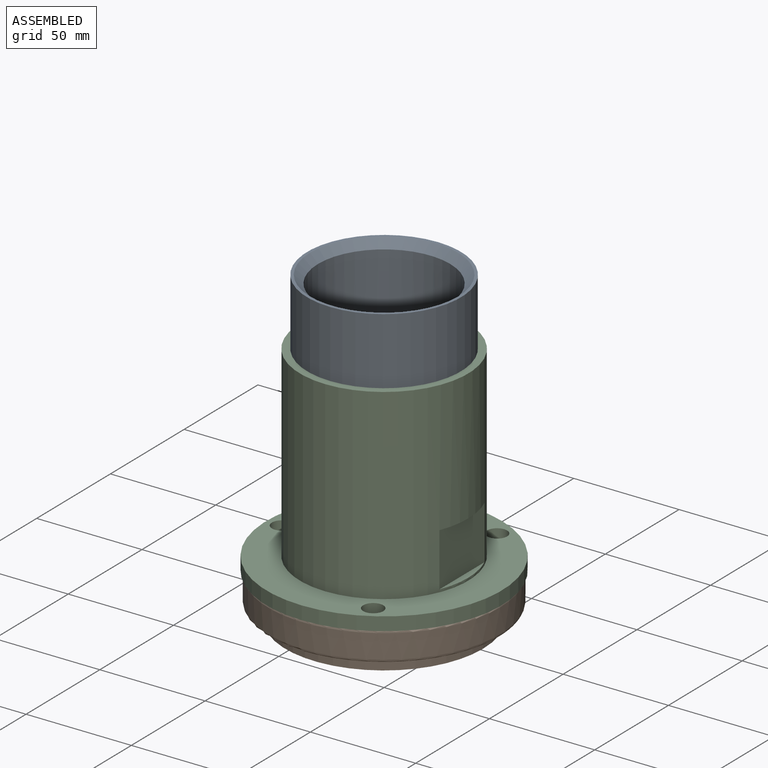
[diagram: assembled view]
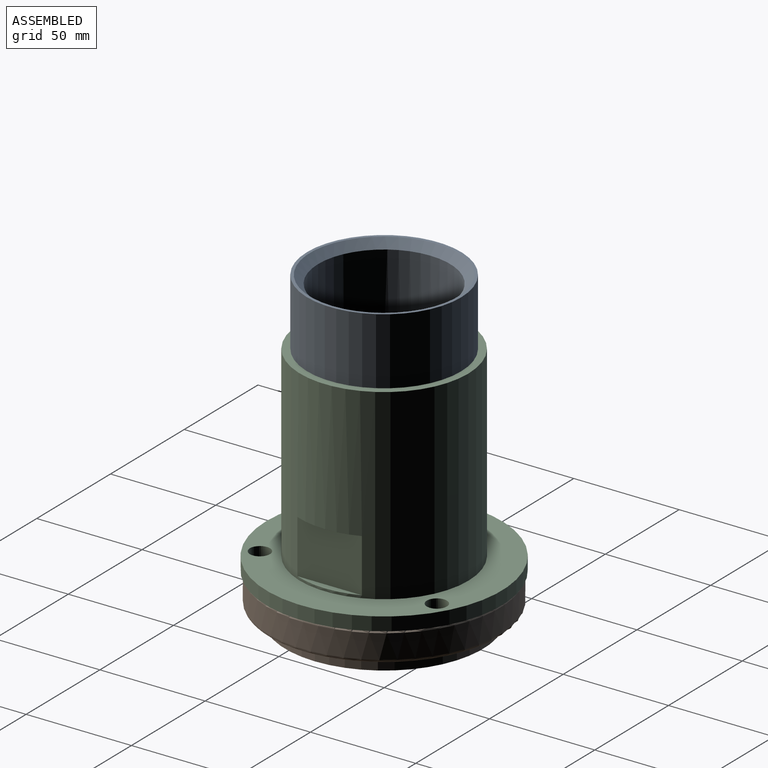
[diagram: assembled view, second angle]
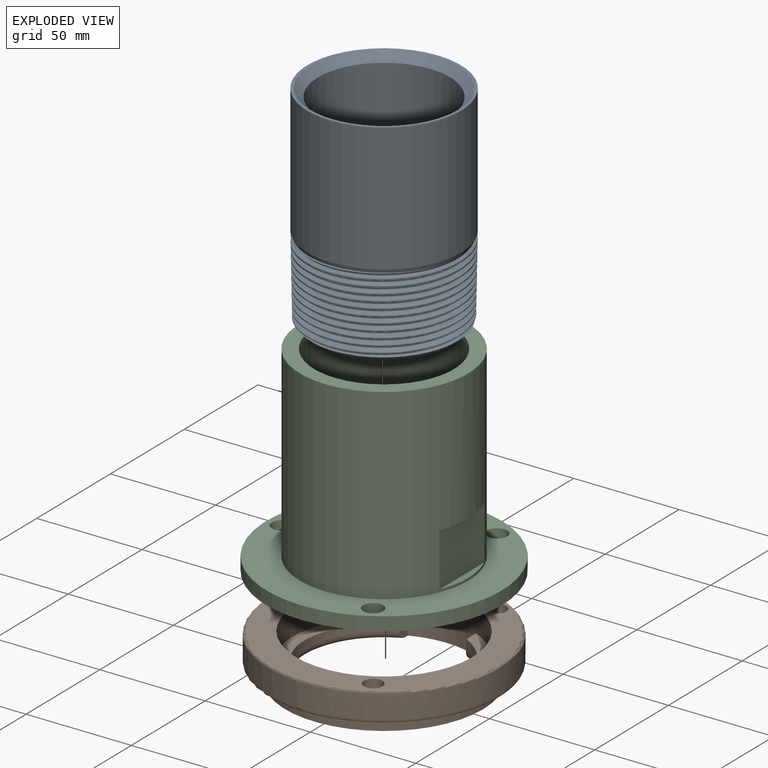
[diagram: exploded view]
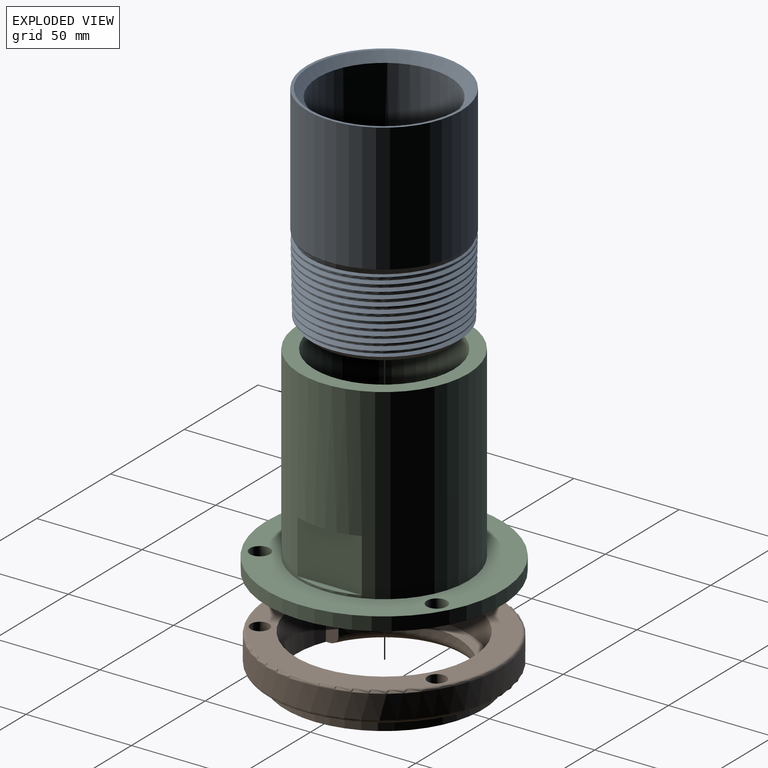
[diagram: exploded view, second angle]
ASSEMBLY  parts=3 mates=2
PART A: 14 faces, bbox 101.8x74.2x74.1 mm
  f0: bspline ~69.87x69.87mm, area 962.6mm2, adj f1,f2,f5,f8
  f1: bspline ~74.2x74.06mm, area 5275.2mm2, adj f0,f3,f4,f5,f6,f8,f9
  f2: bspline ~74.12x74.06mm, area 5463.6mm2, adj f0,f3,f4,f6,f8,f9
  f3: cone r=34.69mm half-angle=45deg, axis (1,0,0), area 104.8mm2, adj f1,f2,f4,f9
  f4: cone r=36.51mm half-angle=1deg, axis (-1,0,0), area 1380.9mm2, adj f1,f2,f3,f6
  f5: cone r=32.58mm half-angle=46deg, axis (-1,0,0), area 598.5mm2, adj f0,f1,f6,f7
  f6: cone r=32.58mm half-angle=46deg, axis (-1,0,0), area 77mm2, adj f1,f2,f4,f5
  f7: plane 65.17x65.17mm, normal (1,0,0), area 246.6mm2, adj f5,f12
  f8: cone r=36.51mm half-angle=25deg, axis (-1,0,0), area 26.2mm2, adj f0,f1,f2,f9
  f9: cone r=36.51mm half-angle=25deg, axis (-1,0,0), area 558.1mm2, adj f1,f2,f3,f8,f10
  f10: cylinder r=36.51mm len=73.03mm, axis (1,0,0), area 13970.8mm2, adj f9,f11
  f11: plane 73.03x73.03mm, normal (-1,0,0), area 303.1mm2, adj f10,f13
  f12: cylinder r=31.36mm len=97.79mm, axis (1,0,0), area 19266.3mm2, adj f7,f13
  f13: cone r=35.17mm half-angle=45deg, axis (-1,0,0), area 1126.1mm2, adj f11,f12
PART B: 39 faces, bbox 119.4x21.3x119.4 mm
  f0: cylinder r=36.4mm len=65.37mm, axis (0,1,0), area 335.7mm2, adj f21,f22,f23,f24,f25,f38
  f1: plane 8.98x6.19mm, normal (-1,0,0), area 47.1mm2, adj f5,f12,f17,f21,f38
  f2: plane 6.19x5.84mm, normal (-1,0,0), area 28.6mm2, adj f5,f12,f18,f25,f38
  f3: cylinder r=36.4mm len=65.37mm, axis (0,1,0), area 335.7mm2, adj f26,f27,f28,f29,f30,f37
  f4: cylinder r=55mm len=110mm, axis (0,1,0), area 3960.3mm2, adj f10,f11
  f5: plane 94x94mm, normal (0,1,0), area 1749.5mm2, adj f1,f2,f8,f12,f13,f14,f37,f38
  f6: plane 107.46x107.46mm, normal (0,-1,0), area 3369mm2, adj f11,f12,f31,f33,f35
  f7: plane 107.46x107.46mm, normal (0,1,0), area 1749.5mm2, adj f9,f10,f32,f34,f36
  f8: cylinder r=47mm len=94mm, axis (0,-1,0), area 1692.1mm2, adj f5,f9
  f9: torus R=48.27mm, axis (0,-1,0), area 594.9mm2, adj f7,f8
  f10: torus R=53.73mm, axis (0,1,0), area 683.6mm2, adj f4,f7
  f11: torus R=53.73mm, axis (0,-1,0), area 683.6mm2, adj f4,f6
  f12: cylinder r=41.91mm len=83.82mm, axis (0,-1,0), area 3903.4mm2, adj f1,f2,f5,f6,f13,f14,f15,f16
  f13: plane 6.19x5.84mm, normal (1,0,0), area 28.6mm2, adj f5,f12,f19,f26,f37
  f14: plane 8.98x6.19mm, normal (1,0,0), area 47.1mm2, adj f5,f12,f20,f30,f37
  f15: plane 76.81x25.09mm, normal (0,-1,0.04), area 462mm2, adj f12,f19,f20,f28
  f16: plane 76.81x25.09mm, normal (0,-1,-0.04), area 462mm2, adj f12,f17,f18,f23
  f17: cylinder r=1.27mm len=6.39mm, axis (0,-0.04,1), area 11.7mm2, adj f1,f12,f16,f22
  f18: cylinder r=1.27mm len=6.48mm, axis (0,-0.04,1), area 11.7mm2, adj f2,f12,f16,f24
  f19: cylinder r=1.27mm len=6.48mm, axis (0,-0.04,-1), area 11.7mm2, adj f12,f13,f15,f27
  f20: cylinder r=1.27mm len=6.39mm, axis (0,-0.04,-1), area 11.7mm2, adj f12,f14,f15,f29
  f21: plane 5.75x0.35mm, normal (-0.85,0,-0.53), area 1.5mm2, adj f0,f1,f22,f38
  f22: bspline ~1.28x1.28mm, area 0.6mm2, adj f0,f17,f21,f23
  f23: bspline ~64.82x19.64mm, area 29.4mm2, adj f0,f16,f22,f24
  f24: bspline ~1.3x1.28mm, area 0.6mm2, adj f0,f18,f23,f25
  f25: plane 2.87x0.35mm, normal (-0.85,0,0.53), area 0.7mm2, adj f0,f2,f24,f38
  f26: plane 2.87x0.35mm, normal (0.85,0,-0.53), area 0.7mm2, adj f3,f13,f27,f37
  f27: bspline ~1.3x1.28mm, area 0.6mm2, adj f3,f19,f26,f28
  f28: bspline ~64.82x19.64mm, area 29.4mm2, adj f3,f15,f27,f29
  f29: bspline ~1.28x1.28mm, area 0.6mm2, adj f3,f20,f28,f30
  f30: plane 5.75x0.35mm, normal (0.85,0,0.53), area 1.5mm2, adj f3,f14,f29,f37
  f31: cylinder r=4.4mm len=11.43mm, axis (0,-1,0), area 316mm2, adj f6,f32
  f32: cone r=0mm half-angle=59deg, axis (0,-1,0), area 70.9mm2, adj f7,f31
  f33: cylinder r=4.4mm len=11.43mm, axis (0,-1,0), area 316mm2, adj f6,f34
  f34: cone r=0mm half-angle=59deg, axis (0,-1,0), area 70.9mm2, adj f7,f33
  f35: cylinder r=4.4mm len=11.43mm, axis (0,-1,0), area 316mm2, adj f6,f36
  f36: cone r=0mm half-angle=59deg, axis (0,-1,0), area 70.9mm2, adj f7,f35
  f37: torus R=40.21mm, axis (0,-1,0), area 515.2mm2, adj f3,f5,f13,f14,f26,f30
  f38: torus R=40.21mm, axis (0,-1,0), area 515.2mm2, adj f0,f1,f2,f5,f21,f25
PART C: 20 faces, bbox 111.8x101.3x111.8 mm
  f0: cylinder r=4.76mm len=9.53mm, axis (0,1,0), area 190mm2, adj f4,f5
  f1: cylinder r=4.76mm len=9.53mm, axis (0,1,0), area 190mm2, adj f4,f5
  f2: cylinder r=55.88mm len=111.76mm, axis (0,1,0), area 2229.5mm2, adj f4,f5
  f3: cylinder r=4.76mm len=9.53mm, axis (0,1,0), area 190mm2, adj f4,f5
  f4: plane 111.76x111.76mm, normal (0,-1,0), area 4568.3mm2, adj f0,f1,f2,f3,f6
  f5: plane 111.76x111.76mm, normal (0,1,0), area 4244mm2, adj f0,f1,f2,f3,f11
  f6: cylinder r=40mm len=88.9mm, axis (0,1,0), area 21547.4mm2, adj f4,f7,f16,f17,f18
  f7: plane 80.01x80.01mm, normal (0,-1,0), area 1576.1mm2, adj f6,f8
  f8: cylinder r=33.15mm len=69.85mm, axis (0,-1,0), area 14547.6mm2, adj f7,f9
  f9: plane 66.29x66.29mm, normal (0,-1,0), area 2916.6mm2, adj f8,f19
  f10: cylinder r=36mm len=72mm, axis (0,-1,0), area 1357.2mm2, adj f12,f15
  f11: cylinder r=41.27mm len=82.55mm, axis (0,-1,0), area 1556mm2, adj f5,f12
  f12: plane 82.55x82.55mm, normal (0,1,0), area 1280.6mm2, adj f10,f11
  f13: plane 55x55mm, normal (0,1,0), area 1840.7mm2, adj f14,f19
  f14: cylinder r=27.5mm len=55mm, axis (0,-1,0), area 1036.7mm2, adj f13,f15
  f15: plane 72x72mm, normal (0,1,0), area 1695.7mm2, adj f10,f14
  f16: plane 30.63x25.4mm, normal (1,0,0), area 778.1mm2, adj f6,f17,f18
  f17: plane 30.63x3.05mm, normal (0,1,0), area 62.7mm2, adj f6,f16
  f18: plane 30.63x3.05mm, normal (0,-1,0), area 62.7mm2, adj f6,f16
  f19: cylinder r=13.05mm len=31.4mm, axis (0,-1,0), area 2574.9mm2, adj f9,f13
PLACE A rot(axis=(0.71,0,-0.71),180deg) t=(0,0,50.8)mm
PLACE B rot(axis=(-1,0,0),90deg) t=(0,0,-46.4)mm
PLACE C rot(axis=(-1,0,0),90deg) t=(0,0,-46.4)mm
MATE fastened C.f8 <-> B.f0  axis (0,0,-1) through (0,0,-25.4)mm
MATE fastened C.f8 <-> A.f3  axis (0,0,1) through (0,0,0)mm
